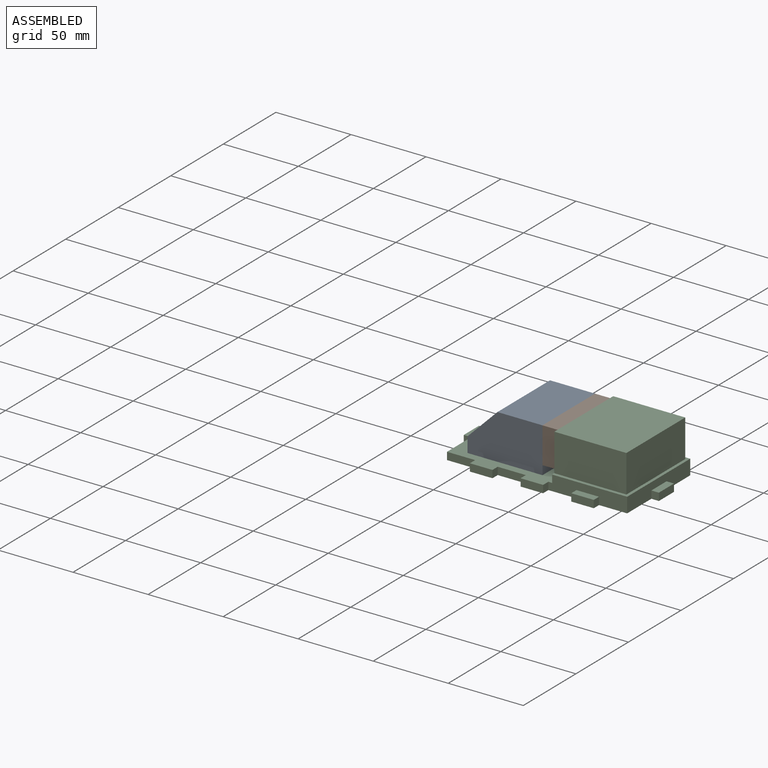
[diagram: assembled view]
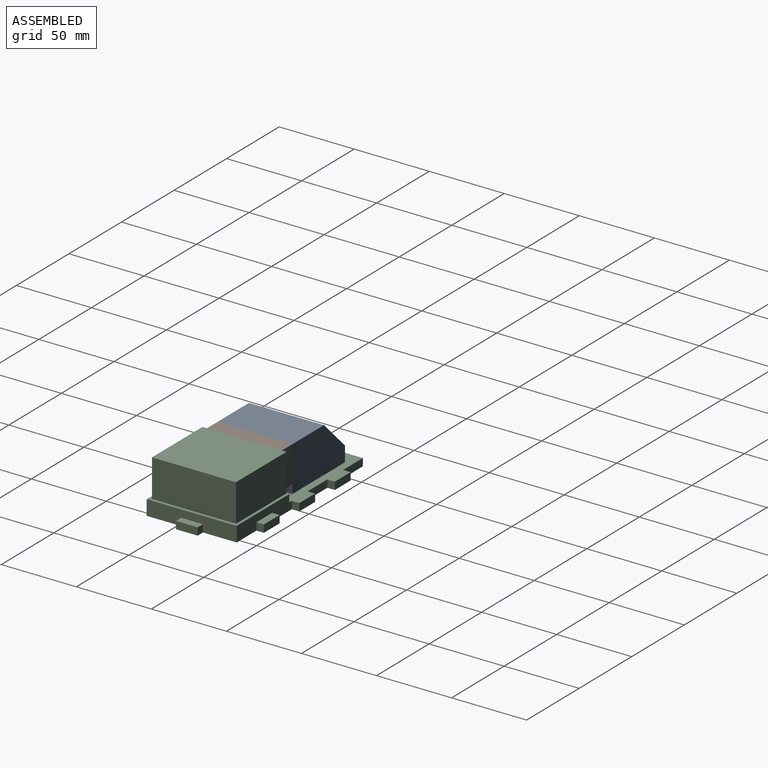
[diagram: assembled view, second angle]
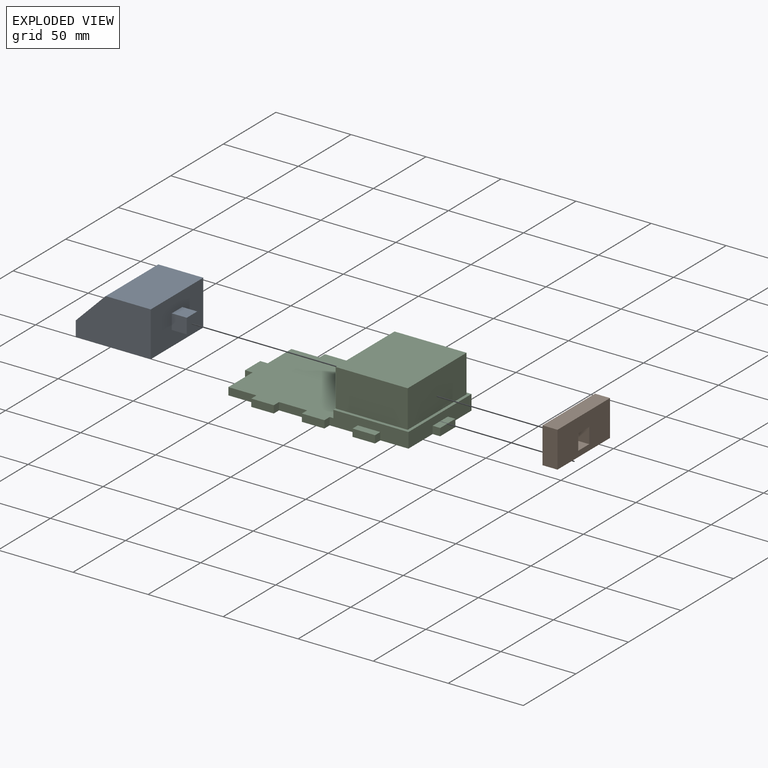
[diagram: exploded view]
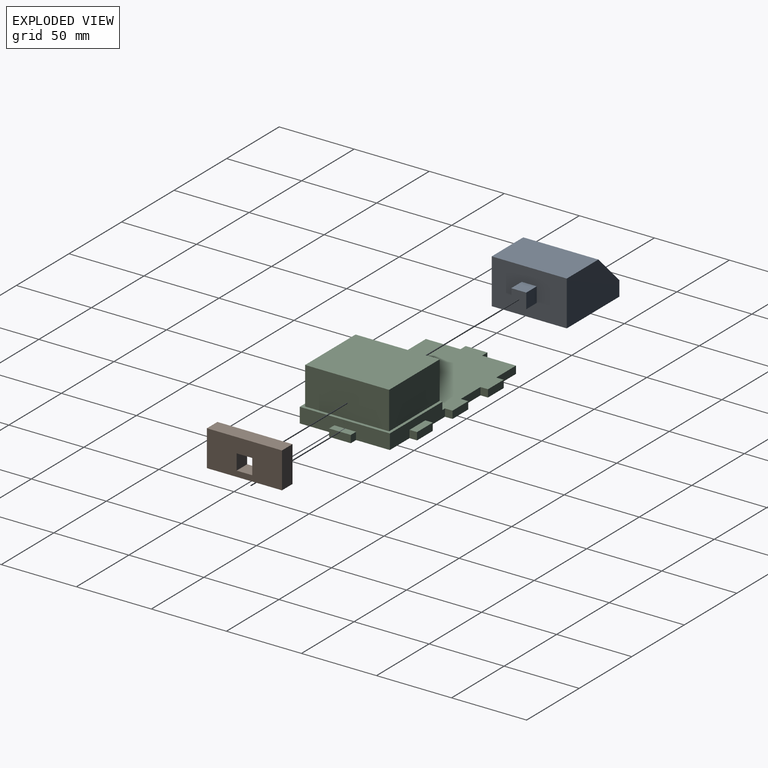
[diagram: exploded view, second angle]
ASSEMBLY  parts=3 mates=2
PART A: 12 faces, bbox 60x50x30 mm
  f0: plane 50x50mm, normal (0,0,-1), area 2500mm2, adj f1,f3,f9,f10
  f1: plane 50x30mm, normal (1,0,0), area 1400mm2, adj f0,f2,f4,f5,f6,f7,f9,f10
  f2: plane 50x30mm, normal (0,0,1), area 1500mm2, adj f1,f9,f10,f11
  f3: plane 50x10mm, normal (-1,0,0), area 500mm2, adj f0,f9,f10,f11
  f4: plane 10x10mm, normal (0,0,-1), area 100mm2, adj f1,f5,f7,f8
  f5: plane 10x10mm, normal (0,1,0), area 100mm2, adj f1,f4,f6,f8
  f6: plane 10x10mm, normal (0,0,1), area 100mm2, adj f1,f5,f7,f8
  f7: plane 10x10mm, normal (0,-1,0), area 100mm2, adj f1,f4,f6,f8
  f8: plane 10x10mm, normal (1,0,0), area 100mm2, adj f4,f5,f6,f7
  f9: plane 50x30mm, normal (0,-1,0), area 1300mm2, adj f0,f1,f2,f3,f11
  f10: plane 50x30mm, normal (0,1,0), area 1300mm2, adj f0,f1,f2,f3,f11
  f11: plane 50x20mm, normal (-0.71,0,0.71), area 1414.2mm2, adj f2,f3,f9,f10
PART B: 10 faces, bbox 10x50x24 mm
  f0: plane 50x10mm, normal (0,0,-1), area 500mm2, adj f6,f7,f8,f9
  f1: plane 50x10mm, normal (0,0,1), area 500mm2, adj f6,f7,f8,f9
  f2: plane 10.4x10mm, normal (0,-1,0), area 104mm2, adj f3,f5,f6,f7
  f3: plane 10.4x10mm, normal (0,0,1), area 104mm2, adj f2,f4,f6,f7
  f4: plane 10.4x10mm, normal (0,1,0), area 104mm2, adj f3,f5,f6,f7
  f5: plane 10.4x10mm, normal (0,0,-1), area 104mm2, adj f2,f4,f6,f7
  f6: plane 50x24mm, normal (1,0,0), area 1091.8mm2, adj f0,f1,f2,f3,f4,f5,f8,f9
  f7: plane 50x24mm, normal (-1,0,0), area 1091.8mm2, adj f0,f1,f2,f3,f4,f5,f8,f9
  f8: plane 24x10mm, normal (0,-1,0), area 240mm2, adj f0,f1,f6,f7
  f9: plane 24x10mm, normal (0,1,0), area 240mm2, adj f0,f1,f6,f7
PART C: 44 faces, bbox 130x70x35 mm
  f0: plane 75x70mm, normal (0,0,1), area 4572.4mm2, adj f3,f4,f5,f6,f7,f8,f9,f10
  f1: plane 15x5mm, normal (0,0,1), area 75mm2, adj f14,f15,f16,f17
  f2: plane 15x5mm, normal (0,0,1), area 75mm2, adj f19,f20,f21,f22
  f3: plane 23.02x5mm, normal (-1,0,0), area 115.1mm2, adj f0,f6,f31,f34
  f4: plane 18.75x5mm, normal (0,1,0), area 93.7mm2, adj f0,f5,f29,f31
  f5: plane 22.5x5mm, normal (-1,0,0), area 112.5mm2, adj f0,f4,f31,f32
  f6: plane 18.75x5mm, normal (0,-1,0), area 93.7mm2, adj f0,f3,f7,f31
  f7: plane 5x5mm, normal (-1,0,0), area 25mm2, adj f0,f6,f8,f31
  f8: plane 15x5mm, normal (0,-1,0), area 75mm2, adj f0,f7,f9,f31
  f9: plane 5x5mm, normal (1,0,0), area 25mm2, adj f0,f8,f10,f31
  f10: plane 18.75x5mm, normal (0,-1,0), area 93.8mm2, adj f0,f9,f11,f31
  f11: plane 5x5mm, normal (-1,0,0), area 25mm2, adj f0,f10,f12,f31
  f12: plane 15x5mm, normal (0,-1,0), area 75mm2, adj f0,f11,f13,f31
  f13: plane 5x5mm, normal (1,0,0), area 25mm2, adj f0,f12,f17,f31
  f14: plane 5x5mm, normal (-1,0,0), area 25mm2, adj f1,f15,f17,f31
  f15: plane 15x5mm, normal (0,-1,0), area 75mm2, adj f1,f14,f16,f31
  f16: plane 5x5mm, normal (1,0,0), area 25mm2, adj f1,f15,f17,f31
  f17: plane 52.5x10mm, normal (0,-1,0), area 437.5mm2, adj f0,f1,f13,f14,f16,f18,f31,f38
  f18: plane 60x10mm, normal (1,0,0), area 527.6mm2, adj f17,f22,f30,f31,f36,f37,f40
  f19: plane 5x5mm, normal (1,0,0), area 25mm2, adj f2,f20,f22,f31
  f20: plane 15x5mm, normal (0,1,0), area 75mm2, adj f2,f19,f21,f31
  f21: plane 5x5mm, normal (-1,0,0), area 25mm2, adj f2,f20,f22,f31
  f22: plane 52.5x10mm, normal (0,1,0), area 437.5mm2, adj f0,f2,f18,f19,f21,f23,f31,f38
  f23: plane 5x5mm, normal (1,0,0), area 25mm2, adj f0,f22,f24,f31
  f24: plane 15x5mm, normal (0,1,0), area 75mm2, adj f0,f23,f25,f31
  f25: plane 5x5mm, normal (-1,0,0), area 25mm2, adj f0,f24,f26,f31
  f26: plane 18.75x5mm, normal (0,1,0), area 93.8mm2, adj f0,f25,f27,f31
  f27: plane 5x5mm, normal (1,0,0), area 25mm2, adj f0,f26,f28,f31
  f28: plane 15x5mm, normal (0,1,0), area 75mm2, adj f0,f27,f29,f31
  f29: plane 5x5mm, normal (-1,0,0), area 25mm2, adj f0,f4,f28,f31
  f30: plane 14.48x5mm, normal (0,0,1), area 72.4mm2, adj f18,f35,f36,f37
  f31: plane 130x70mm, normal (0,0,-1), area 7794.8mm2, adj f3,f4,f5,f6,f7,f8,f9,f10
  f32: plane 5x5mm, normal (0,1,0), area 25mm2, adj f0,f5,f31,f33
  f33: plane 14.48x5mm, normal (-1,0,0), area 72.4mm2, adj f0,f31,f32,f34
  f34: plane 5x5mm, normal (0,-1,0), area 25mm2, adj f0,f3,f31,f33
  f35: plane 14.48x5mm, normal (1,0,0), area 72.4mm2, adj f30,f31,f36,f37
  f36: plane 5x5mm, normal (0,1,0), area 25mm2, adj f18,f30,f31,f35
  f37: plane 5x5mm, normal (0,-1,0), area 25mm2, adj f18,f30,f31,f35
  f38: plane 60x30mm, normal (-1,0,0), area 1700mm2, adj f0,f17,f22,f39,f40,f41,f43
  f39: plane 56x48mm, normal (0,0,1), area 2688mm2, adj f38,f41,f42,f43
  f40: plane 60x50mm, normal (0,0,1), area 312mm2, adj f17,f18,f22,f38,f41,f42,f43
  f41: plane 48x25mm, normal (0,-1,0), area 1200mm2, adj f38,f39,f40,f42
  f42: plane 56x25mm, normal (1,0,0), area 1400mm2, adj f39,f40,f41,f43
  f43: plane 48x25mm, normal (0,1,0), area 1200mm2, adj f38,f39,f40,f42
PLACE A t=(-3.06,31.85,16.98)mm
PLACE B t=(-28.06,31.85,16.98)mm
PLACE C t=(-3.06,11.71,11.98)mm
MATE fastened B.f6 <-> C.f38  axis (1,0,0) through (6.94,11.85,46.98)mm
MATE fastened A.f1 <-> B.f7  axis (1,0,0) through (-3.06,11.85,46.98)mm
